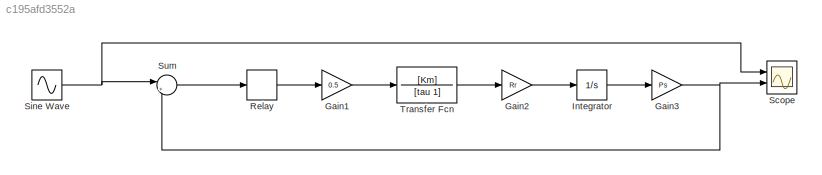
MODEL slx_c195afd3552a
KIND model
CONFIG AbsTol = auto
CONFIG EnableMultiTasking = off
CONFIG FixedStep = 0.0001
CONFIG MaxStep = auto
CONFIG MinStep = auto
CONFIG RelTol = 1e-3
CONFIG SampleTimeConstraint = Unconstrained
CONFIG Solver = FixedStepAuto
CONFIG SolverName = FixedStepAuto
CONFIG StartTime = 0.0
CONFIG StopTime = 10.0
BLOCK [Gain] Gain1
  Gain = 0.5
BLOCK [Gain] Gain2
  Gain = Rr
BLOCK [Gain] Gain3
  Gain = Ps
BLOCK [Integrator] Integrator
  Ports = [1, 1]
BLOCK [Relay] Relay
  OffOutputValue = -Sr
  OffSwitchValue = -a
  OnOutputValue = Sr
  OnSwitchValue = a
BLOCK [Scope] Scope
  Floating = off
  NumInputPorts = 2
  Ports = [2]
  ScopeSpecificationString = Simulink.scopes.TimeScopeBlockCfg('CurrentConfiguration', extmgr.ConfigurationSet(extmgr.Configuration('Core','General UI',true),extmgr.Configuration('Core','Source UI',true),extmgr.Configuration('Sources','WiredSimulink',true),extmgr.Configuration('Visuals','Time Domain',true,'SerializedDisplays',{struct('MinYLimReal','-0.6375','MaxYLimReal','0.62188','YLabelReal','','MinYLimMag','0.00000','MaxYL...<+1407ch>
BLOCK [Sin] Sine Wave
  Amplitude = 0.51
  Frequency = 314.1593
  Ports = [0, 1]
  SampleTime = 0
BLOCK [Sum] Sum
  Inputs = |+-
  Ports = [2, 1]
BLOCK [TransferFcn] Transfer Fcn
  Denominator = [tau 1]
  Numerator = [Km]
LINE Gain1:1 -> Transfer Fcn:1
LINE Gain2:1 -> Integrator:1
NET Gain3:1 -> Scope:2, Sum:2
LINE Integrator:1 -> Gain3:1
LINE Relay:1 -> Gain1:1
NET Sine Wave:1 -> Scope:1, Sum:1
LINE Sum:1 -> Relay:1
LINE Transfer Fcn:1 -> Gain2:1
note: NET lines group one-source signal fan-out (src -> all destinations, sorted); 1:1 wires keep LINE
